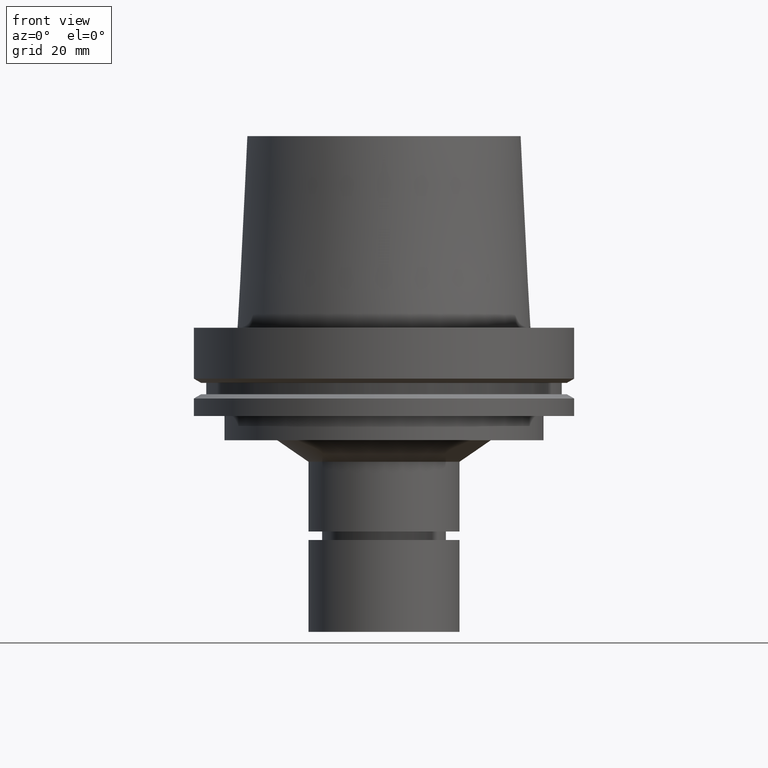
[diagram: clean part render]
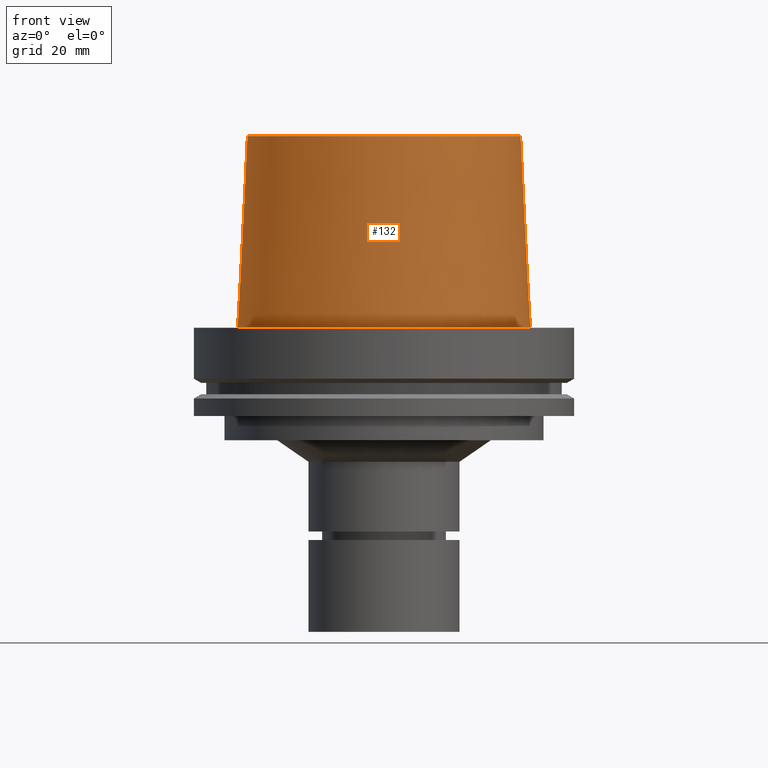
[diagram: same view with one face highlighted and labeled with its STEP entity id]
A machine part, front view. The second image highlights one B-rep face of the part: STEP entity #132.
In plain terms, the highlighted conical surface has half-angle 2.868 deg.
Its self-contained STEP definition (entity closure, byte-faithful):
#87=EDGE_CURVE('Unnamed[1]',#228,#228,#229,.T.);
#132=ADVANCED_FACE('Unnamed[1]',(#298,#299),#300,.T.);
#153=EDGE_CURVE('Unnamed[1]',#331,#331,#332,.T.);
#228=VERTEX_POINT('',#428);
#229=CIRCLE('',#429,44.977939879759);
#298=FACE_BOUND('',#515,.T.);
#299=FACE_BOUND('',#516,.T.);
#300=CONICAL_SURFACE('',#517,46.5560961923844,0.0500583457465986);
#331=VERTEX_POINT('',#556);
#332=CIRCLE('',#557,48.1342525050098);
#428=CARTESIAN_POINT('',(-3.85763741731416E-015,44.9779398797591,62.9999999999999));
#429=AXIS2_PLACEMENT_3D('',#657,#658,#659);
#515=EDGE_LOOP('',(#737));
#516=EDGE_LOOP('',(#738));
#517=AXIS2_PLACEMENT_3D('',#739,#740,#741);
#556=CARTESIAN_POINT('',(3.88158335277612E-029,48.1342525050097,-6.37705254174039E-013));
#557=AXIS2_PLACEMENT_3D('',#776,#777,#778);
#657=CARTESIAN_POINT('',(-3.85763741731416E-015,4.90847251653719E-014,63.0));
#658=DIRECTION('',(6.12323399573677E-017,-1.01046214935355E-015,-1.0));
#659=DIRECTION('',(5.70458091124975E-032,1.0,-1.01046214935355E-015));
#737=ORIENTED_EDGE('',*,*,#153,.F.);
#738=ORIENTED_EDGE('',*,*,#87,.T.);
#739=CARTESIAN_POINT('',(-1.92881870865706E-015,1.72551674607345E-014,31.4999999999997));
#740=DIRECTION('',(6.12323399573677E-017,-1.01046214935357E-015,-1.0));
#741=DIRECTION('',(5.70458091124999E-032,1.0,-1.01046214935357E-015));
#776=CARTESIAN_POINT('',(3.56767193672464E-029,-1.45743902439029E-014,-5.82645043323282E-013));
#777=DIRECTION('',(6.12323399573677E-017,-1.01046214935352E-015,-1.0));
#778=DIRECTION('',(5.70458091125022E-032,1.0,-1.01046214935352E-015));